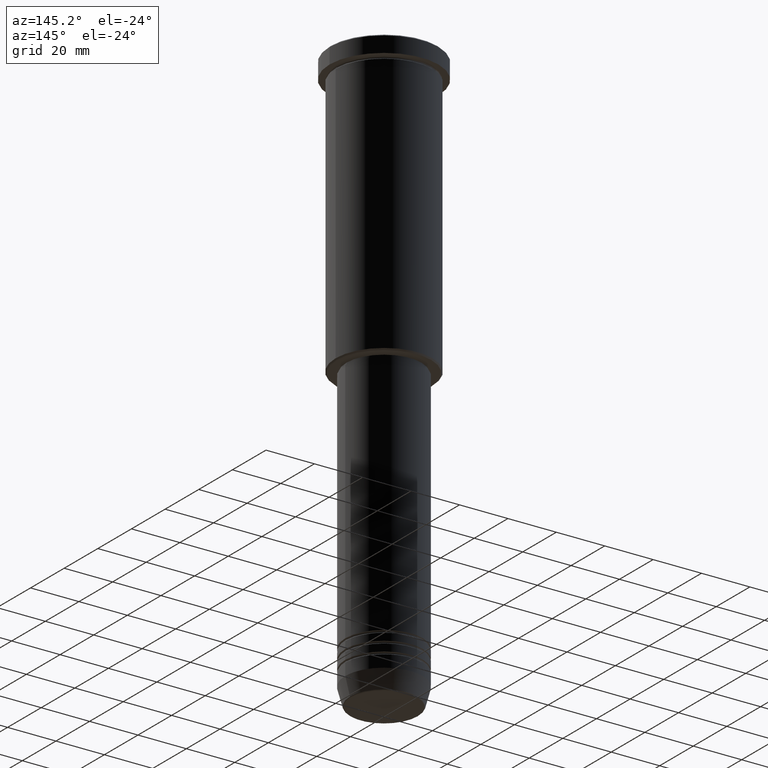
[diagram: clean part render]
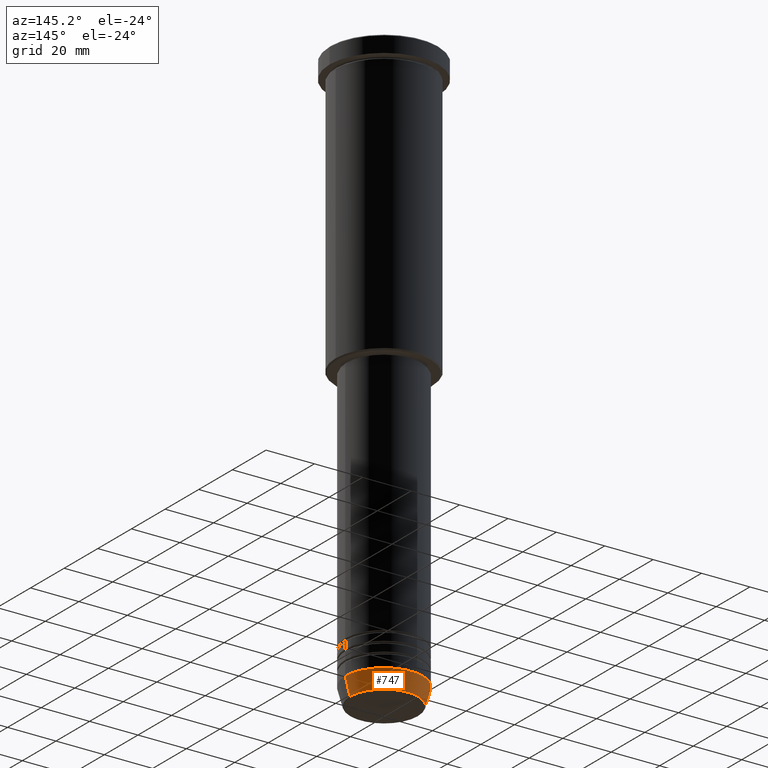
[diagram: same view with one face highlighted and labeled with its STEP entity id]
A machine part, auxiliary view. The second image highlights one B-rep face of the part: STEP entity #747.
In plain terms, the highlighted conical surface has half-angle 15 deg.
Its self-contained STEP definition (entity closure, byte-faithful):
#206 = CARTESIAN_POINT ( 'NONE',  ( 14.08968047592163941, 0.000000000000000000, -239.6294095225512422 ) ) ;
#217 = VERTEX_POINT ( 'NONE', #1128 ) ;
#247 = AXIS2_PLACEMENT_3D ( 'NONE', #1101, #992, #1001 ) ;
#293 = VERTEX_POINT ( 'NONE', #206 ) ;
#308 = ORIENTED_EDGE ( 'NONE', *, *, #539, .T. ) ;
#374 = FACE_OUTER_BOUND ( 'NONE', #412, .T. ) ;
#393 = EDGE_CURVE ( 'NONE', #491, #217, #1115, .T. ) ;
#412 = EDGE_LOOP ( 'NONE', ( #308, #652, #733, #637 ) ) ;
#418 = EDGE_CURVE ( 'NONE', #293, #491, #1171, .T. ) ;
#422 = DIRECTION ( 'NONE',  ( 1.000000000000000000, 0.000000000000000000, 0.000000000000000000 ) ) ;
#469 = CARTESIAN_POINT ( 'NONE',  ( 0.000000000000000000, 0.000000000000000000, -232.5000000000000000 ) ) ;
#491 = VERTEX_POINT ( 'NONE', #495 ) ;
#495 = CARTESIAN_POINT ( 'NONE',  ( 16.00000000000000000, 0.000000000000000000, -232.5000000000000000 ) ) ;
#510 = AXIS2_PLACEMENT_3D ( 'NONE', #589, #695, #422 ) ;
#516 = DIRECTION ( 'NONE',  ( 0.2588190451025213501, 0.000000000000000000, 0.9659258262890680902 ) ) ;
#517 = AXIS2_PLACEMENT_3D ( 'NONE', #469, #669, #764 ) ;
#533 = EDGE_CURVE ( 'NONE', #1007, #217, #574, .T. ) ;
#539 = EDGE_CURVE ( 'NONE', #293, #1007, #808, .T. ) ;
#574 = LINE ( 'NONE', #760, #825 ) ;
#589 = CARTESIAN_POINT ( 'NONE',  ( 0.000000000000000000, 0.000000000000000000, -239.6294095225512422 ) ) ;
#637 = ORIENTED_EDGE ( 'NONE', *, *, #418, .F. ) ;
#652 = ORIENTED_EDGE ( 'NONE', *, *, #533, .T. ) ;
#654 = CONICAL_SURFACE ( 'NONE', #247, 16.00000000000000000, 0.2617993877991500740 ) ;
#669 = DIRECTION ( 'NONE',  ( -0.000000000000000000, -0.000000000000000000, 1.000000000000000000 ) ) ;
#694 = CARTESIAN_POINT ( 'NONE',  ( -14.08968047592163941, 1.842461544110202058E-15, -239.6294095225512422 ) ) ;
#695 = DIRECTION ( 'NONE',  ( -0.000000000000000000, -0.000000000000000000, 1.000000000000000000 ) ) ;
#733 = ORIENTED_EDGE ( 'NONE', *, *, #393, .F. ) ;
#747 = ADVANCED_FACE ( 'NONE', ( #374 ), #654, .T. ) ;
#760 = CARTESIAN_POINT ( 'NONE',  ( -16.00000000000000000, 1.959434878635765131E-15, -232.5000000000000000 ) ) ;
#764 = DIRECTION ( 'NONE',  ( 1.000000000000000000, 0.000000000000000000, 0.000000000000000000 ) ) ;
#782 = VECTOR ( 'NONE', #516, 1000.000000000000000 ) ;
#808 = CIRCLE ( 'NONE', #510, 14.08968047592163941 ) ;
#825 = VECTOR ( 'NONE', #937, 1000.000000000000000 ) ;
#937 = DIRECTION ( 'NONE',  ( -0.2588190451025213501, 3.169619151431772337E-17, 0.9659258262890680902 ) ) ;
#992 = DIRECTION ( 'NONE',  ( -0.000000000000000000, -0.000000000000000000, 1.000000000000000000 ) ) ;
#1001 = DIRECTION ( 'NONE',  ( 1.000000000000000000, 0.000000000000000000, 0.000000000000000000 ) ) ;
#1007 = VERTEX_POINT ( 'NONE', #694 ) ;
#1101 = CARTESIAN_POINT ( 'NONE',  ( 0.000000000000000000, 0.000000000000000000, -232.5000000000000000 ) ) ;
#1115 = CIRCLE ( 'NONE', #517, 16.00000000000000000 ) ;
#1128 = CARTESIAN_POINT ( 'NONE',  ( -16.00000000000000000, 1.959434878635765131E-15, -232.5000000000000000 ) ) ;
#1160 = CARTESIAN_POINT ( 'NONE',  ( 16.00000000000000000, 0.000000000000000000, -232.5000000000000000 ) ) ;
#1171 = LINE ( 'NONE', #1160, #782 ) ;